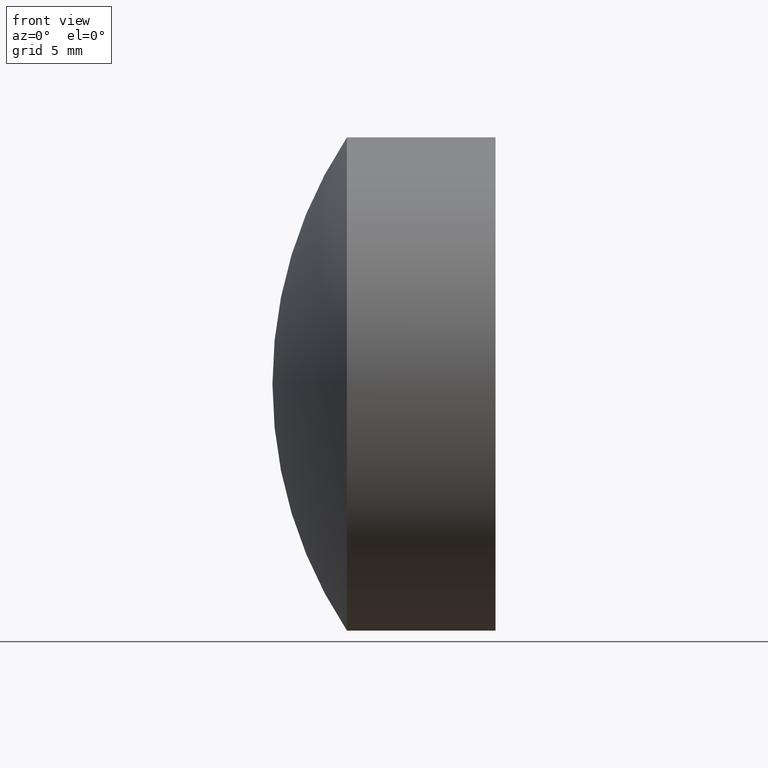
[diagram: clean part render]
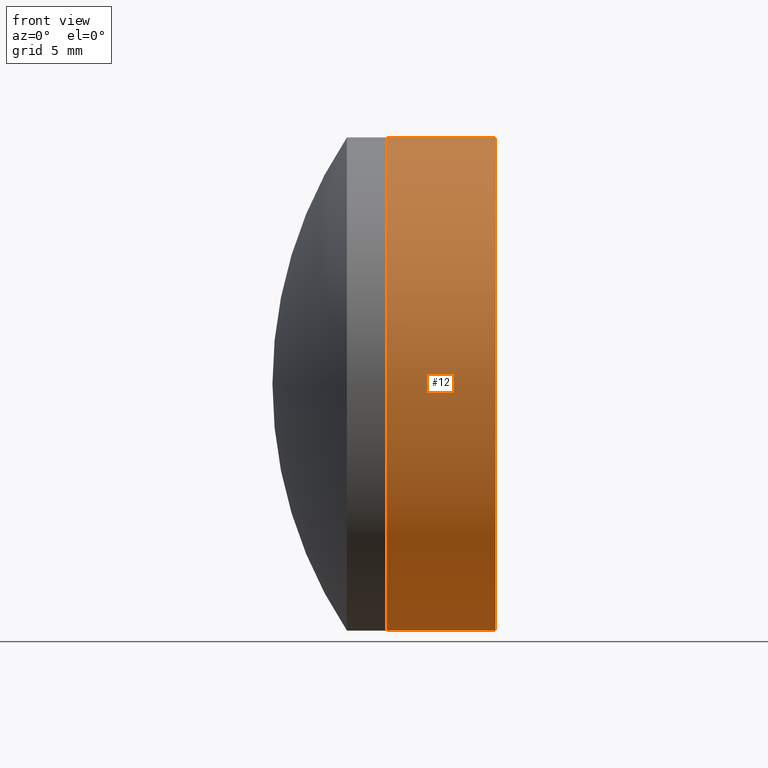
[diagram: same view with one face highlighted and labeled with its STEP entity id]
A machine part, front view. The second image highlights one B-rep face of the part: STEP entity #12.
In plain terms, the highlighted cylindrical surface (partial cylindrical patch) has radius 12.7 mm, axis along (-1, -0, -0).
Its self-contained STEP definition (entity closure, byte-faithful):
#3 = VERTEX_POINT ( 'NONE', #173 ) ;
#10 = CIRCLE ( 'NONE', #21, 12.69999999999999400 ) ;
#12 = ADVANCED_FACE ( 'NONE', ( #68 ), #208, .T. ) ;
#13 = CARTESIAN_POINT ( 'NONE',  ( 42.35364623093715200, 0.0000000000000000000, -12.69999999999743100 ) ) ;
#19 = LINE ( 'NONE', #120, #314 ) ;
#21 = AXIS2_PLACEMENT_3D ( 'NONE', #329, #95, #30 ) ;
#30 = DIRECTION ( 'NONE',  ( 0.0000000000000000000, 0.0000000000000000000, 1.000000000000000000 ) ) ;
#56 = ORIENTED_EDGE ( 'NONE', *, *, #221, .F. ) ;
#64 = EDGE_CURVE ( 'NONE', #103, #310, #10, .T. ) ;
#68 = FACE_OUTER_BOUND ( 'NONE', #71, .T. ) ;
#71 = EDGE_LOOP ( 'NONE', ( #56, #285, #133, #154 ) ) ;
#77 = LINE ( 'NONE', #327, #230 ) ;
#95 = DIRECTION ( 'NONE',  ( -1.000000000000000000, -0.0000000000000000000, -0.0000000000000000000 ) ) ;
#103 = VERTEX_POINT ( 'NONE', #306 ) ;
#117 = EDGE_CURVE ( 'NONE', #3, #310, #19, .T. ) ;
#120 = CARTESIAN_POINT ( 'NONE',  ( -0.5519199926577972300, 0.0000000000000000000, 12.69999999999999200 ) ) ;
#121 = CARTESIAN_POINT ( 'NONE',  ( -0.5519199926577972300, 0.0000000000000000000, 0.0000000000000000000 ) ) ;
#129 = VERTEX_POINT ( 'NONE', #13 ) ;
#133 = ORIENTED_EDGE ( 'NONE', *, *, #117, .T. ) ;
#148 = DIRECTION ( 'NONE',  ( 0.0000000000000000000, 0.0000000000000000000, 1.000000000000000000 ) ) ;
#154 = ORIENTED_EDGE ( 'NONE', *, *, #64, .F. ) ;
#173 = CARTESIAN_POINT ( 'NONE',  ( 42.35364623093715200, -1.555301434916824100E-015, 12.69999999999743100 ) ) ;
#184 = CIRCLE ( 'NONE', #258, 12.69999999999999200 ) ;
#205 = DIRECTION ( 'NONE',  ( 0.0000000000000000000, 0.0000000000000000000, 1.000000000000000000 ) ) ;
#208 = CYLINDRICAL_SURFACE ( 'NONE', #297, 12.69999999999999200 ) ;
#210 = EDGE_CURVE ( 'NONE', #129, #3, #184, .T. ) ;
#212 = DIRECTION ( 'NONE',  ( -1.000000000000000000, -0.0000000000000000000, -0.0000000000000000000 ) ) ;
#221 = EDGE_CURVE ( 'NONE', #129, #103, #77, .T. ) ;
#230 = VECTOR ( 'NONE', #282, 1000.000000000000000 ) ;
#255 = CARTESIAN_POINT ( 'NONE',  ( 36.76664125472041200, -1.555301434917138000E-015, 12.69999999999999400 ) ) ;
#258 = AXIS2_PLACEMENT_3D ( 'NONE', #288, #309, #205 ) ;
#282 = DIRECTION ( 'NONE',  ( -1.000000000000000000, -0.0000000000000000000, -0.0000000000000000000 ) ) ;
#285 = ORIENTED_EDGE ( 'NONE', *, *, #210, .T. ) ;
#288 = CARTESIAN_POINT ( 'NONE',  ( 42.35364623093713000, 0.0000000000000000000, 0.0000000000000000000 ) ) ;
#293 = DIRECTION ( 'NONE',  ( -1.000000000000000000, -0.0000000000000000000, -0.0000000000000000000 ) ) ;
#297 = AXIS2_PLACEMENT_3D ( 'NONE', #121, #293, #148 ) ;
#306 = CARTESIAN_POINT ( 'NONE',  ( 36.76664125472041200, 0.0000000000000000000, -12.69999999999999400 ) ) ;
#309 = DIRECTION ( 'NONE',  ( -1.000000000000000000, -0.0000000000000000000, -0.0000000000000000000 ) ) ;
#310 = VERTEX_POINT ( 'NONE', #255 ) ;
#314 = VECTOR ( 'NONE', #212, 1000.000000000000000 ) ;
#327 = CARTESIAN_POINT ( 'NONE',  ( -0.5519199926577972300, 1.555301434917137800E-015, -12.69999999999999200 ) ) ;
#329 = CARTESIAN_POINT ( 'NONE',  ( 36.76664125472041200, 0.0000000000000000000, 0.0000000000000000000 ) ) ;